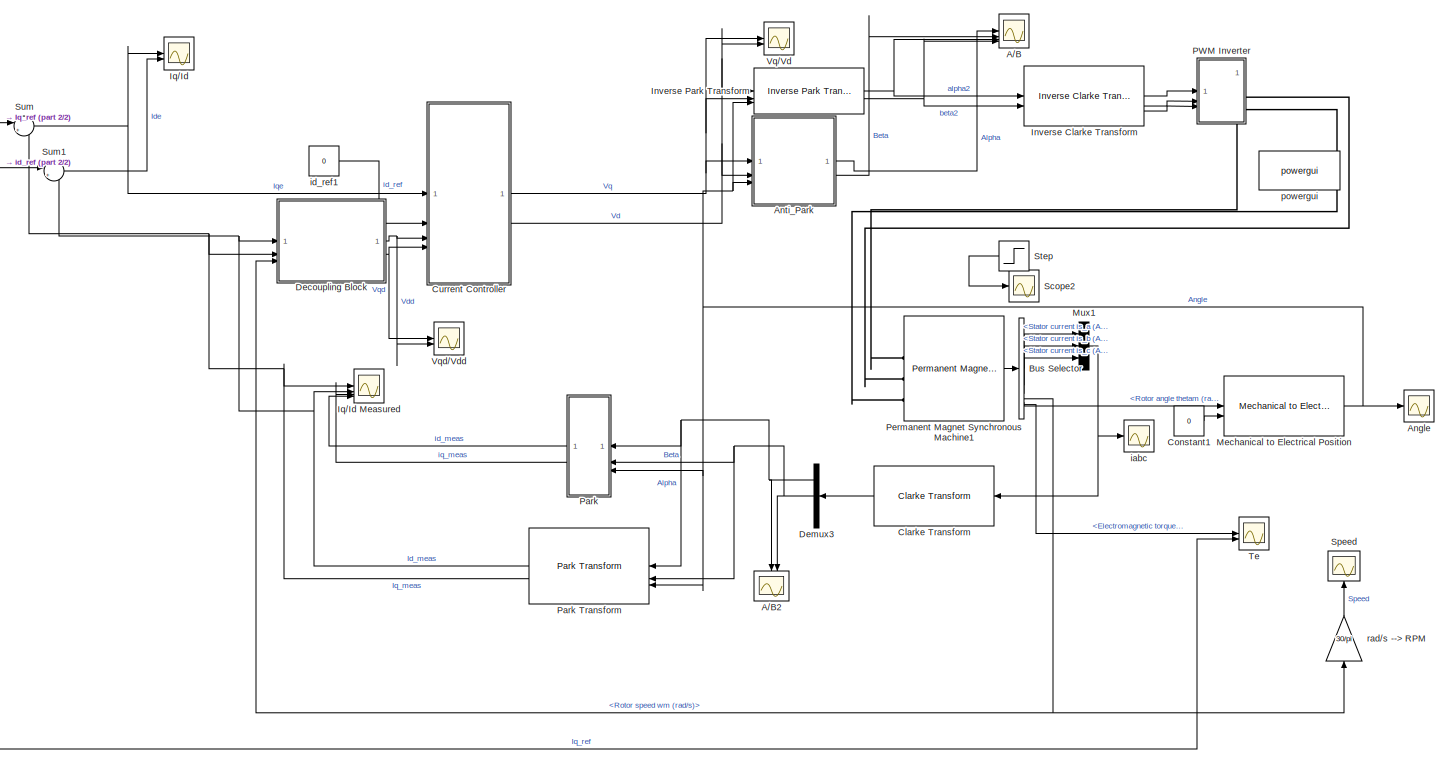
[diagram: root canvas - part 1/2, most of the canvas]
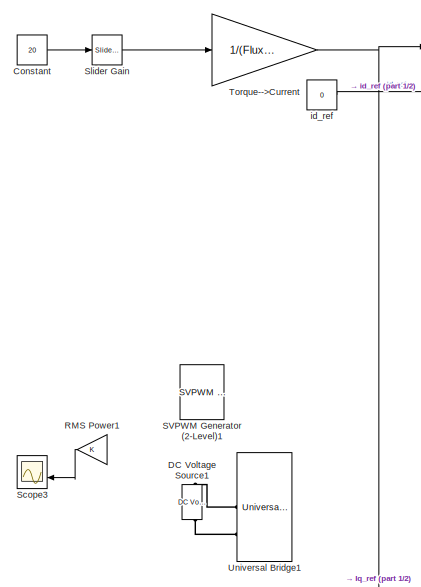
[diagram: root canvas - part 2/2, left side, full height]
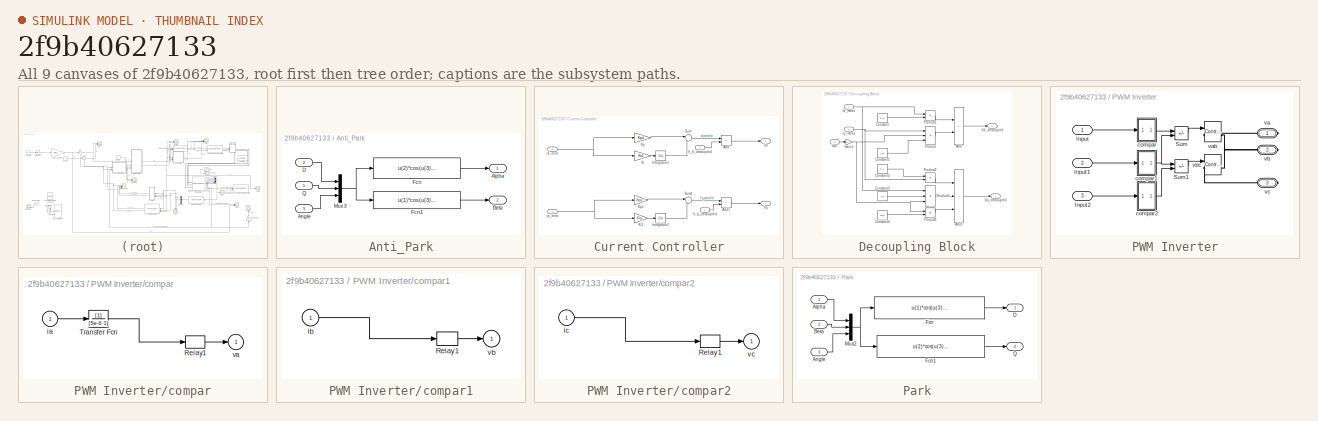
[diagram: thumbnail index - all 9 canvases of the model, root first then tree order]
MODEL slx_2f9b40627133
KIND model
CONFIG AbsTol = auto
CONFIG EnableMultiTasking = on
CONFIG FixedStep = 0.000025
CONFIG InitFcn = Ts = 10e-6;\n\nR = 0.958;\nLd = 5.25e-3;\nLq = 12e-3;\nPn = 4;\nflux = 0.1827;
CONFIG MaxStep = auto
CONFIG MinStep = auto
CONFIG RelTol = 1e-4
CONFIG SampleTimeConstraint = Unconstrained
CONFIG SolverName = VariableStepAuto
CONFIG StartTime = 0.0
CONFIG StopTime = 10
BLOCK [Scope] A//B
  Floating = off
  NumInputPorts = 4
  ScopeSpecificationString = Simulink.scopes.TimeScopeBlockCfg('CurrentConfiguration', extmgr.ConfigurationSet(extmgr.Configuration('Core','General UI',true),extmgr.Configuration('Core','Source UI',true),extmgr.Configuration('Sources','WiredSimulink',true,'DataLoggingVariableName','ScopeData5'),extmgr.Configuration('Visuals','Time Domain',true,'SerializedDisplays',{struct('MinYLimReal','-145.48213','MaxYLimReal','110.73243','...<+1641ch>
BLOCK [Scope] A//B2
  Floating = off
  NameLocation = left
  NumInputPorts = 2
  ScopeSpecificationString = Simulink.scopes.TimeScopeBlockCfg('CurrentConfiguration', extmgr.ConfigurationSet(extmgr.Configuration('Core','General UI',true),extmgr.Configuration('Core','Source UI',true),extmgr.Configuration('Sources','WiredSimulink',true,'DataLoggingVariableName','ScopeData4'),extmgr.Configuration('Visuals','Time Domain',true,'SerializedDisplays',{struct('MinYLimReal','-6.43948','MaxYLimReal','7.58023','YLab...<+1616ch>
BLOCK [Scope] Angle
  Floating = off
  NumInputPorts = 1
  ScopeSpecificationString = Simulink.scopes.TimeScopeBlockCfg('CurrentConfiguration', extmgr.ConfigurationSet(extmgr.Configuration('Core','General UI',true),extmgr.Configuration('Core','Source UI',true),extmgr.Configuration('Sources','WiredSimulink',true,'DataLoggingVariableName','ScopeData8'),extmgr.Configuration('Visuals','Time Domain',true,'SerializedDisplays',{struct('MinYLimReal','-0.7854','MaxYLimReal','7.06858','YLabe...<+1512ch>
BLOCK [SubSystem] Anti_Park
BLOCK [Outport] Anti_Park/Alpha
  VectorParamsAs1DForOutWhenUnconnected = off
BLOCK [Inport] Anti_Park/Angle
  Port = 3
BLOCK [Outport] Anti_Park/Beta
  Port = 2
  VectorParamsAs1DForOutWhenUnconnected = off
BLOCK [Inport] Anti_Park/D
  Port = 2
BLOCK [Fcn] Anti_Park/Fcn
  Expr = u(2)*cos(u(3))-u(1)*sin(u(3))
BLOCK [Fcn] Anti_Park/Fcn1
  Expr = u(1)*cos(u(3))+u(2)*sin(u(3))
BLOCK [Mux] Anti_Park/Mux3
  DisplayOption = bar
  Inputs = 3
BLOCK [Inport] Anti_Park/Q
BLOCK [BusSelector] Bus Selector
  OutputSignals = Stator current is_a (A),Stator current is_b (A),Stator current is_c (A),Rotor speed wm (rad/s),Rotor angle thetam (rad),Electromagnetic torque Te (N*m)
BLOCK [Reference] Clarke Transform  REF=mcbcontrolslib/Clarke Transform
  LibrarySourceBlock = mcblib/Controls/Math Transforms/Clarke Transform
  NameLocation = top
  SourceBlock = mcbcontrolslib/Clarke Transform
  SourceType = Clarke Transform
BLOCK [Constant] Constant
  Value = 20
BLOCK [Constant] Constant1
  Value = 0
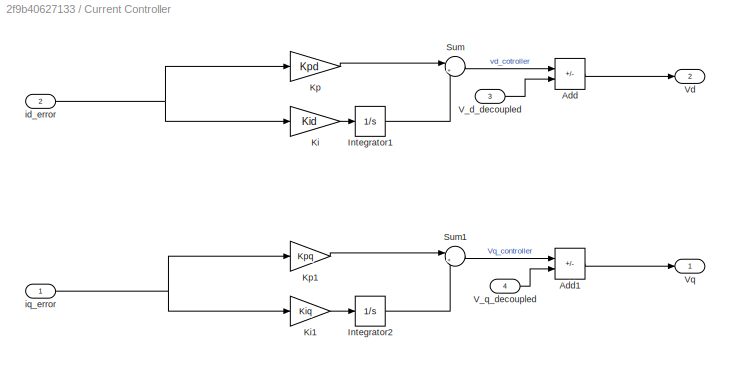
BLOCK [SubSystem] Current Controller
BLOCK [Sum] Current Controller/Add
  IconShape = rectangular
  Inputs = +-
BLOCK [Sum] Current Controller/Add1
  IconShape = rectangular
  Inputs = +-
BLOCK [Integrator] Current Controller/Integrator1
BLOCK [Integrator] Current Controller/Integrator2
BLOCK [Gain] Current Controller/Ki
  Gain = Kid
BLOCK [Gain] Current Controller/Ki1
  Gain = Kiq
BLOCK [Gain] Current Controller/Kp
  Gain = Kpd
BLOCK [Gain] Current Controller/Kp1
  Gain = Kpq
BLOCK [Sum] Current Controller/Sum
  Inputs = |++
BLOCK [Sum] Current Controller/Sum1
  Inputs = |++
BLOCK [Inport] Current Controller/V_d_decoupled
  Port = 3
BLOCK [Inport] Current Controller/V_q_decoupled
  Port = 4
BLOCK [Outport] Current Controller/Vd
  Port = 2
BLOCK [Outport] Current Controller/Vq
BLOCK [Inport] Current Controller/id_error
  Port = 2
BLOCK [Inport] Current Controller/iq_error
BLOCK [Reference] DC Voltage Source1  REF=spsDCVoltageSourceLib/DC Voltage Source
  Commented = on
  LibrarySourceBlock = sps_lib/Sources/DC Voltage Source
  SourceBlock = spsDCVoltageSourceLib/DC Voltage Source
  SourceType = DC Voltage Source
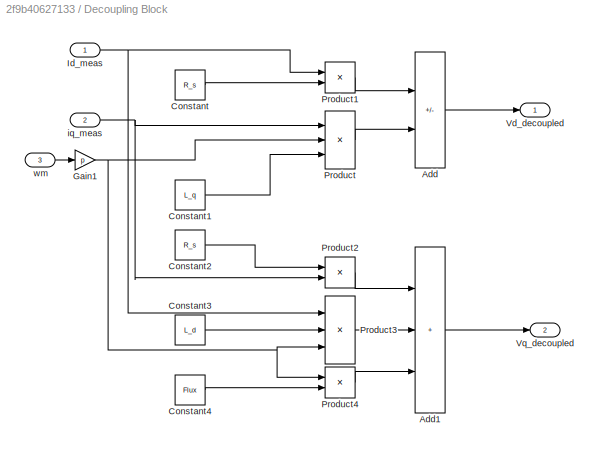
BLOCK [SubSystem] Decoupling Block
BLOCK [Sum] Decoupling Block/Add
  IconShape = rectangular
  Inputs = +-
BLOCK [Sum] Decoupling Block/Add1
  IconShape = rectangular
  Inputs = +++
BLOCK [Constant] Decoupling Block/Constant
  Value = R_s
BLOCK [Constant] Decoupling Block/Constant1
  Value = L_q
BLOCK [Constant] Decoupling Block/Constant2
  Value = R_s
BLOCK [Constant] Decoupling Block/Constant3
  Value = L_d
BLOCK [Constant] Decoupling Block/Constant4
  Value = Flux
BLOCK [Gain] Decoupling Block/Gain1
  Gain = p
BLOCK [Inport] Decoupling Block/Id_meas
BLOCK [Product] Decoupling Block/Product
  Inputs = 3
BLOCK [Product] Decoupling Block/Product1
BLOCK [Product] Decoupling Block/Product2
BLOCK [Product] Decoupling Block/Product3
  Inputs = 3
BLOCK [Product] Decoupling Block/Product4
BLOCK [Outport] Decoupling Block/Vd_decoupled
BLOCK [Outport] Decoupling Block/Vq_decoupled
  Port = 2
BLOCK [Inport] Decoupling Block/iq_meas
  Port = 2
BLOCK [Inport] Decoupling Block/wm
  Port = 3
BLOCK [Demux] Demux3
  NameLocation = top
  Outputs = 3
BLOCK [Reference] Inverse Clarke Transform  REF=mcbcontrolslib/Inverse Clarke Transform
  LibrarySourceBlock = mcbhdllib/Controls/Math Transforms/Inverse Clarke Transform
  SourceBlock = mcbcontrolslib/Inverse Clarke Transform
  SourceType = Inverse Clarke Transform
BLOCK [Reference] Inverse Park Transform  REF=mcbcontrolslib/Inverse Park Transform
  LibrarySourceBlock = mcbhdllib/Controls/Math Transforms/Inverse Park Transform
  SourceBlock = mcbcontrolslib/Inverse Park Transform
  SourceType = Inverse Park Transform
BLOCK [Scope] Iq//Id
  Floating = off
  NumInputPorts = 2
  ScopeSpecificationString = Simulink.scopes.TimeScopeBlockCfg('CurrentConfiguration', extmgr.ConfigurationSet(extmgr.Configuration('Core','General UI',true),extmgr.Configuration('Core','Source UI',true),extmgr.Configuration('Sources','WiredSimulink',true,'DataLoggingVariableName','ScopeData2'),extmgr.Configuration('Visuals','Time Domain',true,'SerializedDisplays',{struct('MinYLimReal','-58.37026','MaxYLimReal','44.13737','YL...<+1670ch>
BLOCK [Scope] Iq//Id Measured
  Floating = off
  NumInputPorts = 4
  ScopeSpecificationString = Simulink.scopes.TimeScopeBlockCfg('CurrentConfiguration', extmgr.ConfigurationSet(extmgr.Configuration('Core','General UI',true),extmgr.Configuration('Core','Source UI',true),extmgr.Configuration('Sources','WiredSimulink',true,'DataLoggingVariableName','ScopeData3'),extmgr.Configuration('Visuals','Time Domain',true,'SerializedDisplays',{struct('MinYLimReal','-50.90541','MaxYLimReal','191.94241','Y...<+1754ch>
BLOCK [Reference] Mechanical to Electrical Position  REF=mcbhdlpositiondecoderlib/Mechanical to Electrical Position
  LibrarySourceBlock = mcbhdllib/Sensor Decoders/Mechanical to Electrical Position
  SourceBlock = mcbhdlpositiondecoderlib/Mechanical to Electrical Position
  SourceType = Mechanical to Electrical Position
BLOCK [Mux] Mux1
  DisplayOption = bar
  Inputs = 3
BLOCK [SubSystem] PWM Inverter
BLOCK [Inport] PWM Inverter/Input
  IconDisplay = Signal name
BLOCK [Inport] PWM Inverter/Input1
  IconDisplay = Signal name
  Port = 2
BLOCK [Inport] PWM Inverter/Input2
  IconDisplay = Signal name
  Port = 3
BLOCK [Sum] PWM Inverter/Sum
  IconShape = rectangular
  InputSameDT = on
  Inputs = +-
  OutDataTypeStr = Inherit: Same as first input
  SaturateOnIntegerOverflow = on
BLOCK [Sum] PWM Inverter/Sum1
  IconShape = rectangular
  InputSameDT = on
  Inputs = +-
  OutDataTypeStr = Inherit: Same as first input
  SaturateOnIntegerOverflow = on
BLOCK [SubSystem] PWM Inverter/compar
BLOCK [Relay] PWM Inverter/compar/Relay1
  OffOutputValue = -155
  OffSwitchValue = -0.05
  OnOutputValue = 155
  OnSwitchValue = 0.05
BLOCK [TransferFcn] PWM Inverter/compar/Transfer Fcn
  Denominator = [5e-6 1]
BLOCK [Inport] PWM Inverter/compar/ia
BLOCK [Outport] PWM Inverter/compar/va
  InitialOutput = 0
  VectorParamsAs1DForOutWhenUnconnected = off
BLOCK [SubSystem] PWM Inverter/compar1
BLOCK [Relay] PWM Inverter/compar1/Relay1
  OffOutputValue = -155
  OffSwitchValue = -0.05
  OnOutputValue = 155
  OnSwitchValue = 0.05
BLOCK [Inport] PWM Inverter/compar1/ib
BLOCK [Outport] PWM Inverter/compar1/vb
  InitialOutput = 0
  VectorParamsAs1DForOutWhenUnconnected = off
BLOCK [SubSystem] PWM Inverter/compar2
BLOCK [Relay] PWM Inverter/compar2/Relay1
  OffOutputValue = -155
  OffSwitchValue = -0.05
  OnOutputValue = 155
  OnSwitchValue = 0.05
BLOCK [Inport] PWM Inverter/compar2/ic
BLOCK [Outport] PWM Inverter/compar2/vc
  InitialOutput = 0
  VectorParamsAs1DForOutWhenUnconnected = off
BLOCK [PMIOPort] PWM Inverter/va
  NameLocation = top
  Side = Right
BLOCK [Reference] PWM Inverter/vab  REF=spsControlledVoltageSourceLib/Controlled Voltage Source
  AttributesFormatString = \n
  Description = source block
  LibrarySourceBlock = sps_lib/Sources/Controlled Voltage Source
  SourceBlock = spsControlledVoltageSourceLib/Controlled Voltage Source
  SourceType = Controlled Voltage Source
BLOCK [PMIOPort] PWM Inverter/vb
  Port = 2
  Side = Right
BLOCK [Reference] PWM Inverter/vbc  REF=spsControlledVoltageSourceLib/Controlled Voltage Source
  AttributesFormatString = \n
  Description = source block
  LibrarySourceBlock = sps_lib/Sources/Controlled Voltage Source
  SourceBlock = spsControlledVoltageSourceLib/Controlled Voltage Source
  SourceType = Controlled Voltage Source
BLOCK [PMIOPort] PWM Inverter/vc
  Port = 3
  Side = Right
BLOCK [SubSystem] Park
BLOCK [Reference] Park Transform  REF=mcbcontrolslib/Park Transform
  LibrarySourceBlock = mcblib/Controls/Math Transforms/Park Transform
  NameLocation = top
  SourceBlock = mcbcontrolslib/Park Transform
  SourceType = Park Transform
BLOCK [Inport] Park/Alpha
BLOCK [Inport] Park/Angle
  Port = 3
BLOCK [Inport] Park/Beta
  Port = 2
BLOCK [Outport] Park/D
  VectorParamsAs1DForOutWhenUnconnected = off
BLOCK [Fcn] Park/Fcn
  Expr = u(1)*cos(u(3))+u(2)*sin(u(3))
BLOCK [Fcn] Park/Fcn1
  Expr = u(2)*cos(u(3))-u(1)*sin(u(3))
BLOCK [Mux] Park/Mux2
  DisplayOption = bar
  Inputs = 3
BLOCK [Outport] Park/Q
  Port = 2
  VectorParamsAs1DForOutWhenUnconnected = off
BLOCK [Reference] Permanent Magnet Synchronous Machine1  REF=spsPermanentMagnetSynchronousMachineLib/Permanent Magnet
Synchronous Machine
  LibrarySourceBlock = sps_lib/Electrical Machines/Permanent Magnet\nSynchronous Machine
  SourceBlock = spsPermanentMagnetSynchronousMachineLib/Permanent Magnet\nSynchronous Machine
  SourceType = Permanent Magnet Synchronous Machine
BLOCK [Gain] RMS Power1
  Commented = on
  NameLocation = top
BLOCK [Reference] SVPWM Generator (2-Level)1  REF=spsSVPWMGenerator2LevelLib/SVPWM Generator
(2-Level)
  Commented = on
  LibrarySourceBlock = sps_lib/Power Electronics/Power Electronics Control/SVPWM Generator\n(2-Level)
  NameLocation = left
  SourceBlock = spsSVPWMGenerator2LevelLib/SVPWM Generator\n(2-Level)
  SourceType = SVPWM Generator (2-Level)
BLOCK [Scope] Scope2
  Floating = off
  NumInputPorts = 1
  ScopeSpecificationString = Simulink.scopes.TimeScopeBlockCfg('CurrentConfiguration', extmgr.ConfigurationSet(extmgr.Configuration('Core','General UI',true),extmgr.Configuration('Core','Source UI',true),extmgr.Configuration('Sources','WiredSimulink',true,'DataLoggingVariableName','ScopeData10'),extmgr.Configuration('Visuals','Time Domain',true,'SerializedDisplays',{struct('MinYLimReal','-1.00000','MaxYLimReal','1.00000','YLa...<+1632ch>
BLOCK [Scope] Scope3
  Commented = on
  Floating = off
  NameLocation = top
  NumInputPorts = 2
  ScopeSpecificationString = Simulink.scopes.TimeScopeBlockCfg('CurrentConfiguration', extmgr.ConfigurationSet(extmgr.Configuration('Core','General UI',true),extmgr.Configuration('Core','Source UI',true),extmgr.Configuration('Sources','WiredSimulink',true,'DataLoggingVariableName','ScopeData2'),extmgr.Configuration('Visuals','Time Domain',true,'SerializedDisplays',{struct('MinYLimReal','0.09886','MaxYLimReal','0.9322','YLabel...<+1816ch>
BLOCK [Reference] Slider Gain  REF=simulink/Math
Operations/Slider
Gain
  SourceBlock = simulink/Math\nOperations/Slider\nGain
  SourceType = Slider Gain
BLOCK [Scope] Speed
  Floating = off
  NameLocation = right
  NumInputPorts = 1
  ScopeSpecificationString = Simulink.scopes.TimeScopeBlockCfg('CurrentConfiguration', extmgr.ConfigurationSet(extmgr.Configuration('Core','General UI',true),extmgr.Configuration('Core','Source UI',true),extmgr.Configuration('Sources','WiredSimulink',true,'DataLoggingVariableName','ScopeData7'),extmgr.Configuration('Visuals','Time Domain',true,'SerializedDisplays',{struct('MinYLimReal','-1.00000','MaxYLimReal','1.00000','YLab...<+1600ch>
BLOCK [Step] Step
  After = -10
  NameLocation = top
  SampleTime = 0
  Time = 2
BLOCK [Sum] Sum
  Inputs = |+-
BLOCK [Sum] Sum1
  Inputs = |+-
BLOCK [Scope] Te
  Floating = off
  NameLocation = top
  NumInputPorts = 2
  ScopeSpecificationString = Simulink.scopes.TimeScopeBlockCfg('CurrentConfiguration', extmgr.ConfigurationSet(extmgr.Configuration('Core','General UI',true),extmgr.Configuration('Core','Source UI',true),extmgr.Configuration('Sources','WiredSimulink',true,'DataLogging',true,'DataLoggingVariableName','Te','DataLoggingSaveFormat','StructureWithTime','DataLoggingDecimation','1','DataLoggingDecimateData',true),extmgr.Configuratio...<+1938ch>
BLOCK [Gain] Torque-->Current
  Gain = 1/(Flux*p)
BLOCK [Reference] Universal Bridge1  REF=spsUniversalBridgeLib/Universal Bridge
  Commented = on
  LibrarySourceBlock = sps_lib/Power Electronics/Universal Bridge
  SourceBlock = spsUniversalBridgeLib/Universal Bridge
  SourceType = Universal Bridge
BLOCK [Scope] Vq//Vd
  Floating = off
  NumInputPorts = 2
  ScopeSpecificationString = Simulink.scopes.TimeScopeBlockCfg('CurrentConfiguration', extmgr.ConfigurationSet(extmgr.Configuration('Core','General UI',true),extmgr.Configuration('Core','Source UI',true),extmgr.Configuration('Sources','WiredSimulink',true,'DataLoggingVariableName','ScopeData1'),extmgr.Configuration('Visuals','Time Domain',true,'SerializedDisplays',{struct('MinYLimReal','-6.75956','MaxYLimReal','7.23333','YLab...<+1623ch>
BLOCK [Scope] Vqd//Vdd
  Floating = off
  NumInputPorts = 2
  ScopeSpecificationString = Simulink.scopes.TimeScopeBlockCfg('CurrentConfiguration', extmgr.ConfigurationSet(extmgr.Configuration('Core','General UI',true),extmgr.Configuration('Core','Source UI',true),extmgr.Configuration('Sources','WiredSimulink',true,'DataLoggingVariableName','ScopeData9'),extmgr.Configuration('Visuals','Time Domain',true,'SerializedDisplays',{struct('MinYLimReal','-1.46704','MaxYLimReal','4.40659','YLab...<+1581ch>
BLOCK [Scope] iabc
  Floating = off
  NumInputPorts = 1
  ScopeSpecificationString = Simulink.scopes.TimeScopeBlockCfg('CurrentConfiguration', extmgr.ConfigurationSet(extmgr.Configuration('Core','General UI',true),extmgr.Configuration('Core','Source UI',true),extmgr.Configuration('Sources','WiredSimulink',true,'DataLogging',true,'DataLoggingVariableName','Iabc','DataLoggingSaveFormat','StructureWithTime','DataLoggingDecimation','1','DataLoggingDecimateData',true),extmgr.Configurat...<+1950ch>
BLOCK [Constant] id_ref
  Value = 0
BLOCK [Constant] id_ref1
  Value = 0
BLOCK [Reference] powergui  REF=sps_lib/powergui
  LibrarySourceBlock = sps_lib/powergui
  Priority = 1
  SourceBlock = sps_lib/powergui
  SourceType = PSB option menu block
BLOCK [Gain] rad//s --> RPM
  Gain = 30/pi
  NameLocation = right
LINE Anti_Park/Angle:1 -> Anti_Park/Mux3:3
LINE Anti_Park/D:1 -> Anti_Park/Mux3:1
LINE Anti_Park/Fcn1:1 -> Anti_Park/Beta:1
LINE Anti_Park/Fcn:1 -> Anti_Park/Alpha:1
NET Anti_Park/Mux3:1 -> Anti_Park/Fcn1:1, Anti_Park/Fcn:1
LINE Anti_Park/Q:1 -> Anti_Park/Mux3:2
LINE Anti_Park:1 -> A//B:1
LINE Anti_Park:2 -> A//B:2
LINE Bus Selector:1 -> Mux1:1
LINE Bus Selector:2 -> Mux1:2
LINE Bus Selector:3 -> Mux1:3
NET Bus Selector:4 -> Decoupling Block:3, rad//s --> RPM:1
LINE Bus Selector:5 -> Mechanical to Electrical Position:1
LINE Bus Selector:6 -> Te:1
LINE Clarke Transform:1 -> Demux3:1
LINE Constant1:1 -> Mechanical to Electrical Position:2
LINE Constant:1 -> Slider Gain:1
LINE Current Controller/Add1:1 -> Current Controller/Vq:1
LINE Current Controller/Add:1 -> Current Controller/Vd:1
LINE Current Controller/Integrator1:1 -> Current Controller/Sum:2
LINE Current Controller/Integrator2:1 -> Current Controller/Sum1:2
LINE Current Controller/Ki1:1 -> Current Controller/Integrator2:1
LINE Current Controller/Ki:1 -> Current Controller/Integrator1:1
LINE Current Controller/Kp1:1 -> Current Controller/Sum1:1
LINE Current Controller/Kp:1 -> Current Controller/Sum:1
LINE Current Controller/Sum1:1 -> Current Controller/Add1:1
LINE Current Controller/Sum:1 -> Current Controller/Add:1
LINE Current Controller/V_d_decoupled:1 -> Current Controller/Add:2
LINE Current Controller/V_q_decoupled:1 -> Current Controller/Add1:2
NET Current Controller/id_error:1 -> Current Controller/Ki:1, Current Controller/Kp:1
NET Current Controller/iq_error:1 -> Current Controller/Ki1:1, Current Controller/Kp1:1
NET Current Controller:1 -> Anti_Park:1, Inverse Park Transform:2, Vq//Vd:1
NET Current Controller:2 -> Anti_Park:2, Inverse Park Transform:1, Vq//Vd:2
LINE Decoupling Block/Add1:1 -> Decoupling Block/Vq_decoupled:1
LINE Decoupling Block/Add:1 -> Decoupling Block/Vd_decoupled:1
LINE Decoupling Block/Constant1:1 -> Decoupling Block/Product:3
LINE Decoupling Block/Constant2:1 -> Decoupling Block/Product2:1
LINE Decoupling Block/Constant3:1 -> Decoupling Block/Product3:2
LINE Decoupling Block/Constant4:1 -> Decoupling Block/Product4:2
LINE Decoupling Block/Constant:1 -> Decoupling Block/Product1:2
NET Decoupling Block/Gain1:1 -> Decoupling Block/Product3:3, Decoupling Block/Product4:1, Decoupling Block/Product:2
NET Decoupling Block/Id_meas:1 -> Decoupling Block/Product1:1, Decoupling Block/Product3:1
LINE Decoupling Block/Product1:1 -> Decoupling Block/Add:1
LINE Decoupling Block/Product2:1 -> Decoupling Block/Add1:1
LINE Decoupling Block/Product3:1 -> Decoupling Block/Add1:2
LINE Decoupling Block/Product4:1 -> Decoupling Block/Add1:3
LINE Decoupling Block/Product:1 -> Decoupling Block/Add:2
NET Decoupling Block/iq_meas:1 -> Decoupling Block/Product2:2, Decoupling Block/Product:1
LINE Decoupling Block/wm:1 -> Decoupling Block/Gain1:1
NET Decoupling Block:1 -> Current Controller:3, Vqd//Vdd:2
NET Decoupling Block:2 -> Current Controller:4, Vqd//Vdd:1
NET Demux3:1 -> A//B2:1, Park Transform:1, Park:1
NET Demux3:2 -> A//B2:2, Park Transform:2, Park:2
LINE Inverse Clarke Transform:1 -> PWM Inverter:1
LINE Inverse Clarke Transform:2 -> PWM Inverter:2
LINE Inverse Clarke Transform:3 -> PWM Inverter:3
NET Inverse Park Transform:1 -> A//B:3, Inverse Clarke Transform:1
NET Inverse Park Transform:2 -> A//B:4, Inverse Clarke Transform:2
NET Mechanical to Electrical Position:1 -> Angle:1, Anti_Park:3, Inverse Park Transform:3, Park Transform:3, Park:3
NET Mux1:1 -> Clarke Transform:1, iabc:1
LINE PWM Inverter/Input1:1 -> PWM Inverter/compar1:1
LINE PWM Inverter/Input2:1 -> PWM Inverter/compar2:1
LINE PWM Inverter/Input:1 -> PWM Inverter/compar:1
LINE PWM Inverter/Sum1:1 -> PWM Inverter/vbc:1
LINE PWM Inverter/Sum:1 -> PWM Inverter/vab:1
LINE PWM Inverter/compar/Relay1:1 -> PWM Inverter/compar/va:1
LINE PWM Inverter/compar/Transfer Fcn:1 -> PWM Inverter/compar/Relay1:1
LINE PWM Inverter/compar/ia:1 -> PWM Inverter/compar/Transfer Fcn:1
LINE PWM Inverter/compar1/Relay1:1 -> PWM Inverter/compar1/vb:1
LINE PWM Inverter/compar1/ib:1 -> PWM Inverter/compar1/Relay1:1
NET PWM Inverter/compar1:1 -> PWM Inverter/Sum1:1, PWM Inverter/Sum:2
LINE PWM Inverter/compar2/Relay1:1 -> PWM Inverter/compar2/vc:1
LINE PWM Inverter/compar2/ic:1 -> PWM Inverter/compar2/Relay1:1
LINE PWM Inverter/compar2:1 -> PWM Inverter/Sum1:2
LINE PWM Inverter/compar:1 -> PWM Inverter/Sum:1
NET Park Transform:1 -> Decoupling Block:1, Iq//Id Measured:2, Sum1:2
NET Park Transform:2 -> Decoupling Block:2, Iq//Id Measured:1, Sum:2
LINE Park/Alpha:1 -> Park/Mux2:1
LINE Park/Angle:1 -> Park/Mux2:3
LINE Park/Beta:1 -> Park/Mux2:2
LINE Park/Fcn1:1 -> Park/Q:1
LINE Park/Fcn:1 -> Park/D:1
NET Park/Mux2:1 -> Park/Fcn1:1, Park/Fcn:1
LINE Park:1 -> Iq//Id Measured:4
LINE Park:2 -> Iq//Id Measured:3
LINE Permanent Magnet Synchronous Machine1:1 -> Bus Selector:1
LINE RMS Power1:1 -> Scope3:2
LINE Slider Gain:1 -> Torque-->Current:1
LINE Step:1 -> Scope2:1
LINE Sum1:1 -> Iq//Id:2
NET Sum:1 -> Current Controller:1, Iq//Id:1
NET Torque-->Current:1 -> Sum:1, Te:2
LINE id_ref1:1 -> Current Controller:2
LINE id_ref:1 -> Sum1:1
LINE rad//s --> RPM:1 -> Speed:1
PLINE DC Voltage Source1:LConn1 -- Universal Bridge1:RConn2
PLINE DC Voltage Source1:RConn1 -- Universal Bridge1:RConn1
PLINE PWM Inverter/va:RConn1 -- PWM Inverter/vab:RConn1
PNET net1: PWM Inverter/vab:LConn1 -- PWM Inverter/vb:RConn1 -- PWM Inverter/vbc:RConn1
PLINE PWM Inverter/vbc:LConn1 -- PWM Inverter/vc:RConn1
PLINE PWM Inverter:RConn1 -- Permanent Magnet Synchronous Machine1:LConn1
PLINE PWM Inverter:RConn2 -- Permanent Magnet Synchronous Machine1:LConn2
PLINE PWM Inverter:RConn3 -- Permanent Magnet Synchronous Machine1:LConn3
note: NET lines group one-source signal fan-out (src -> all destinations, sorted); 1:1 wires keep LINE; PNET lines group multi-terminal physical nets as a canonical sorted terminal list (undirected conserving connections); 2-terminal nets keep the pairwise PLINE form
